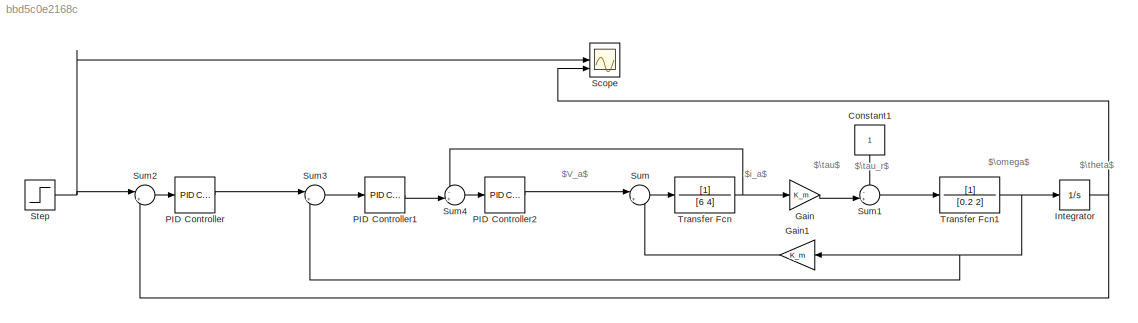
MODEL slx_bbd5c0e2168c
KIND model
CONFIG AbsTol = auto
CONFIG EnableMultiTasking = off
CONFIG FixedStep = auto
CONFIG MaxStep = auto
CONFIG MinStep = auto
CONFIG RelTol = 1e-3
CONFIG SampleTimeConstraint = Unconstrained
CONFIG SolverName = VariableStepAuto
CONFIG StartTime = 0.0
CONFIG StopTime = 30
WORKSPACE source: mxarray member
WORKSPACE K_m = 1
WORKSPACE Volt = 5
BLOCK [Constant] Constant1
  NameLocation = left
BLOCK [Gain] Gain
  Gain = K_m
BLOCK [Gain] Gain1
  Gain = K_m
BLOCK [Integrator] Integrator
BLOCK [Reference] PID Controller  REF=slpidlib/PID Controller
  LibrarySourceBlock = simulink/Continuous/PID Controller
  SourceBlock = slpidlib/PID Controller
  SourceType = PID 1dof
BLOCK [Reference] PID Controller1  REF=slpidlib/PID Controller
  LibrarySourceBlock = simulink/Continuous/PID Controller
  SourceBlock = slpidlib/PID Controller
  SourceType = PID 1dof
BLOCK [Reference] PID Controller2  REF=slpidlib/PID Controller
  LibrarySourceBlock = simulink/Continuous/PID Controller
  SourceBlock = slpidlib/PID Controller
  SourceType = PID 1dof
BLOCK [Scope] Scope
  Floating = off
  NumInputPorts = 3
  ScopeSpecificationString = Simulink.scopes.TimeScopeBlockCfg('CurrentConfiguration', extmgr.ConfigurationSet(extmgr.Configuration('Core','General UI',true),extmgr.Configuration('Core','Source UI',true),extmgr.Configuration('Sources','WiredSimulink',true),extmgr.Configuration('Visuals','Time Domain',true,'SerializedDisplays',{struct('MinYLimReal','-0.44222','MaxYLimReal','3.97348','YLabelReal','','MinYLimMag','0.00000','MaxY...<+1494ch>
BLOCK [Step] Step
  After = 3
  SampleTime = 0
  Time = 0
BLOCK [Sum] Sum
  Inputs = |+-
BLOCK [Sum] Sum1
  Inputs = -+|
  NameLocation = top
BLOCK [Sum] Sum2
  Inputs = |+-
BLOCK [Sum] Sum3
  Inputs = |+-
BLOCK [Sum] Sum4
  Inputs = -+|
BLOCK [TransferFcn] Transfer Fcn
  Denominator = [6 4]
BLOCK [TransferFcn] Transfer Fcn1
  Denominator = [0.2 2]
ANNOTATION (root): $V_a$
ANNOTATION (root): $\omega$
ANNOTATION (root): $\tau$
ANNOTATION (root): $\tau_r$
ANNOTATION (root): $\theta$
ANNOTATION (root): $i_a$
LINE Constant1:1 -> Sum1:1
LINE Gain1:1 -> Sum:2
LINE Gain:1 -> Sum1:2
NET Integrator:1 -> Scope:3, Sum2:2
LINE PID Controller1:1 -> Sum4:2
LINE PID Controller2:1 -> Sum:1
LINE PID Controller:1 -> Sum3:1
NET Step:1 -> Scope:1, Sum2:1
LINE Sum1:1 -> Transfer Fcn1:1
LINE Sum2:1 -> PID Controller:1
LINE Sum3:1 -> PID Controller1:1
LINE Sum4:1 -> PID Controller2:1
LINE Sum:1 -> Transfer Fcn:1
NET Transfer Fcn1:1 -> Gain1:1, Integrator:1, Sum3:2
NET Transfer Fcn:1 -> Gain:1, Sum4:1
note: NET lines group one-source signal fan-out (src -> all destinations, sorted); 1:1 wires keep LINE
